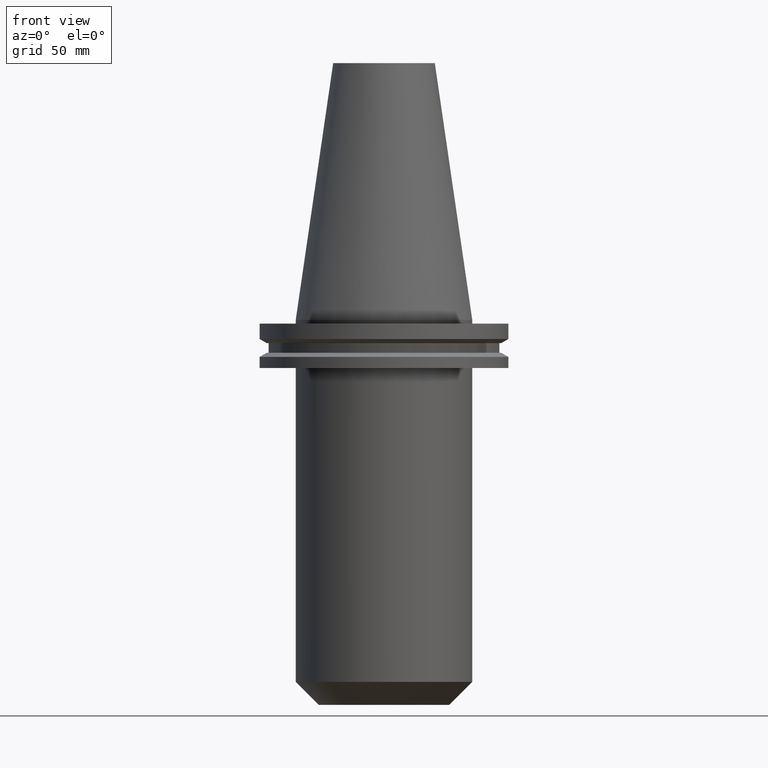
[diagram: clean part render]
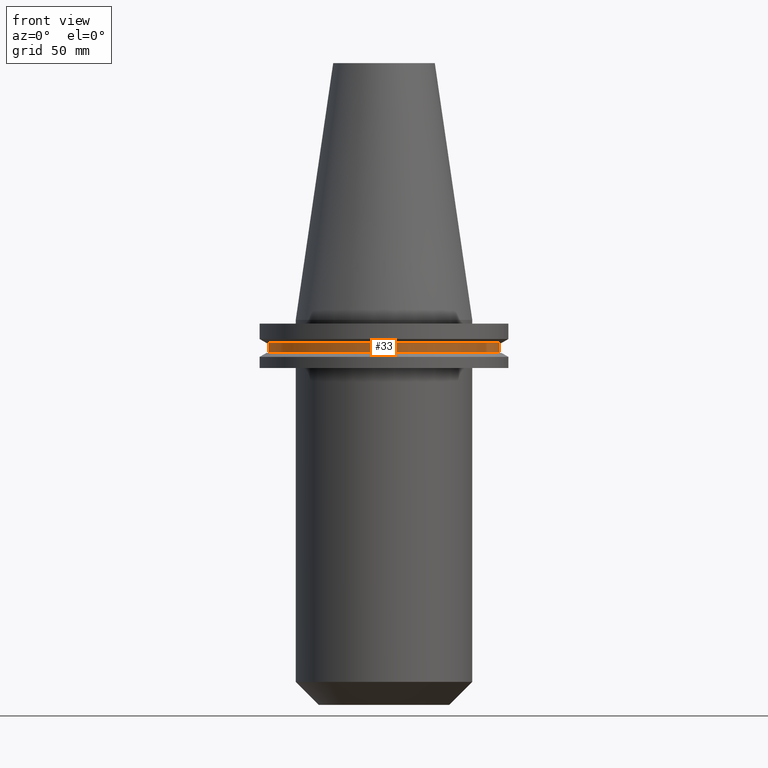
[diagram: same view with one face highlighted and labeled with its STEP entity id]
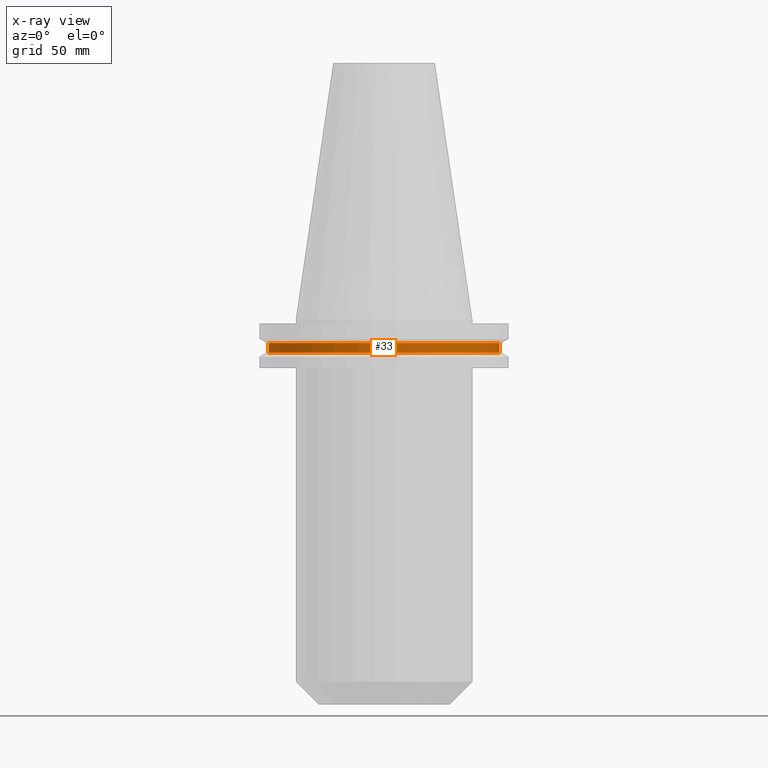
[diagram: x-ray of the same camera — body ghosted, the highlighted face saturated]
A machine part, front view. The second image highlights one B-rep face of the part: STEP entity #33.
The next image is the same camera in x-ray: the body ghosted, the highlighted face saturated — about 0% of this face is hidden behind the body in this view.
In plain terms, the highlighted cylindrical surface (partial cylindrical patch) has radius 45.645 mm, axis along (-0, -0, 1).
Its self-contained STEP definition (entity closure, byte-faithful):
#1 = CARTESIAN_POINT ( 'NONE',  ( 0.000000000000000000, 0.000000000000000000, 101.5999999999999943 ) ) ;
#24 = DIRECTION ( 'NONE',  ( -0.000000000000000000, -0.000000000000000000, 1.000000000000000000 ) ) ;
#30 = EDGE_LOOP ( 'NONE', ( #170, #48, #669, #258 ) ) ;
#33 = ADVANCED_FACE ( 'NONE', ( #608 ), #554, .T. ) ;
#34 = VECTOR ( 'NONE', #24, 1000.000000000000000 ) ;
#48 = ORIENTED_EDGE ( 'NONE', *, *, #315, .T. ) ;
#49 = DIRECTION ( 'NONE',  ( -0.000000000000000000, -0.000000000000000000, 1.000000000000000000 ) ) ;
#80 = AXIS2_PLACEMENT_3D ( 'NONE', #1, #496, #479 ) ;
#121 = VERTEX_POINT ( 'NONE', #381 ) ;
#156 = EDGE_CURVE ( 'NONE', #121, #580, #512, .T. ) ;
#167 = CARTESIAN_POINT ( 'NONE',  ( 0.000000000000000000, 0.000000000000000000, -13.05499999999999794 ) ) ;
#170 = ORIENTED_EDGE ( 'NONE', *, *, #156, .F. ) ;
#175 = CARTESIAN_POINT ( 'NONE',  ( 0.000000000000000000, 0.000000000000000000, -9.204999999999991189 ) ) ;
#223 = DIRECTION ( 'NONE',  ( 1.000000000000000000, 0.000000000000000000, 0.000000000000000000 ) ) ;
#258 = ORIENTED_EDGE ( 'NONE', *, *, #382, .F. ) ;
#270 = CARTESIAN_POINT ( 'NONE',  ( 45.64500000000000313, 0.000000000000000000, -13.05499999999999794 ) ) ;
#315 = EDGE_CURVE ( 'NONE', #121, #680, #711, .T. ) ;
#323 = CARTESIAN_POINT ( 'NONE',  ( -45.64500000000000313, 5.589900314708094957E-15, -9.204999999999991189 ) ) ;
#381 = CARTESIAN_POINT ( 'NONE',  ( -45.64500000000000313, 5.589900314708094957E-15, -13.05499999999999794 ) ) ;
#382 = EDGE_CURVE ( 'NONE', #580, #506, #677, .T. ) ;
#437 = DIRECTION ( 'NONE',  ( -0.000000000000000000, -0.000000000000000000, 1.000000000000000000 ) ) ;
#449 = EDGE_CURVE ( 'NONE', #680, #506, #485, .T. ) ;
#456 = AXIS2_PLACEMENT_3D ( 'NONE', #175, #490, #223 ) ;
#479 = DIRECTION ( 'NONE',  ( 1.000000000000000000, 0.000000000000000000, 0.000000000000000000 ) ) ;
#485 = LINE ( 'NONE', #603, #508 ) ;
#490 = DIRECTION ( 'NONE',  ( -0.000000000000000000, -0.000000000000000000, 1.000000000000000000 ) ) ;
#496 = DIRECTION ( 'NONE',  ( -0.000000000000000000, -0.000000000000000000, 1.000000000000000000 ) ) ;
#506 = VERTEX_POINT ( 'NONE', #729 ) ;
#508 = VECTOR ( 'NONE', #49, 1000.000000000000000 ) ;
#512 = LINE ( 'NONE', #687, #34 ) ;
#519 = AXIS2_PLACEMENT_3D ( 'NONE', #167, #437, #767 ) ;
#554 = CYLINDRICAL_SURFACE ( 'NONE', #80, 45.64500000000000313 ) ;
#580 = VERTEX_POINT ( 'NONE', #323 ) ;
#603 = CARTESIAN_POINT ( 'NONE',  ( 45.64500000000000313, 0.000000000000000000, 101.5999999999999943 ) ) ;
#608 = FACE_OUTER_BOUND ( 'NONE', #30, .T. ) ;
#669 = ORIENTED_EDGE ( 'NONE', *, *, #449, .T. ) ;
#677 = CIRCLE ( 'NONE', #456, 45.64500000000000313 ) ;
#680 = VERTEX_POINT ( 'NONE', #270 ) ;
#687 = CARTESIAN_POINT ( 'NONE',  ( -45.64500000000000313, 5.589900314708094957E-15, 101.5999999999999943 ) ) ;
#711 = CIRCLE ( 'NONE', #519, 45.64500000000000313 ) ;
#729 = CARTESIAN_POINT ( 'NONE',  ( 45.64500000000000313, 0.000000000000000000, -9.204999999999991189 ) ) ;
#767 = DIRECTION ( 'NONE',  ( 1.000000000000000000, 0.000000000000000000, 0.000000000000000000 ) ) ;